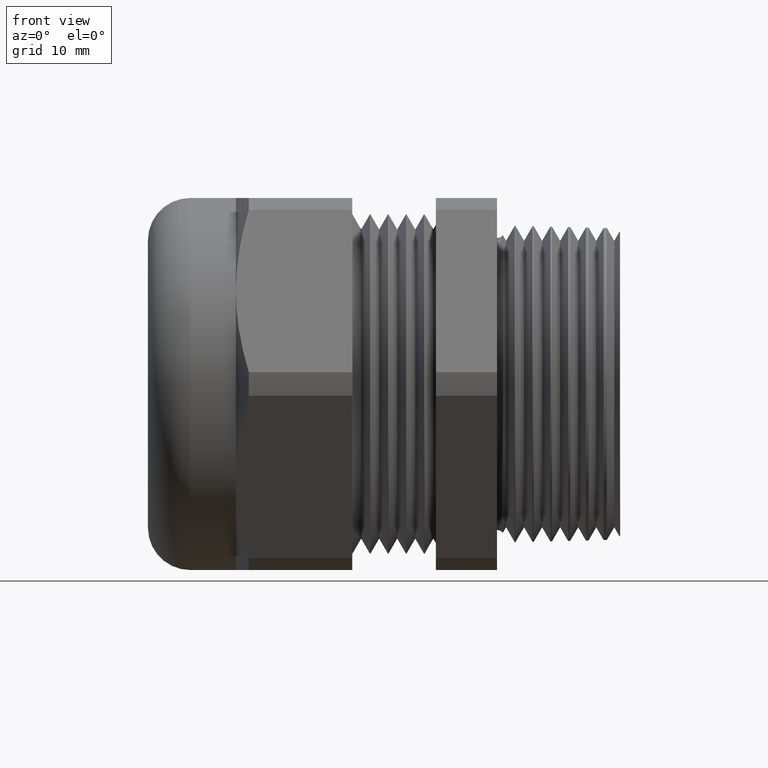
[diagram: clean part render]
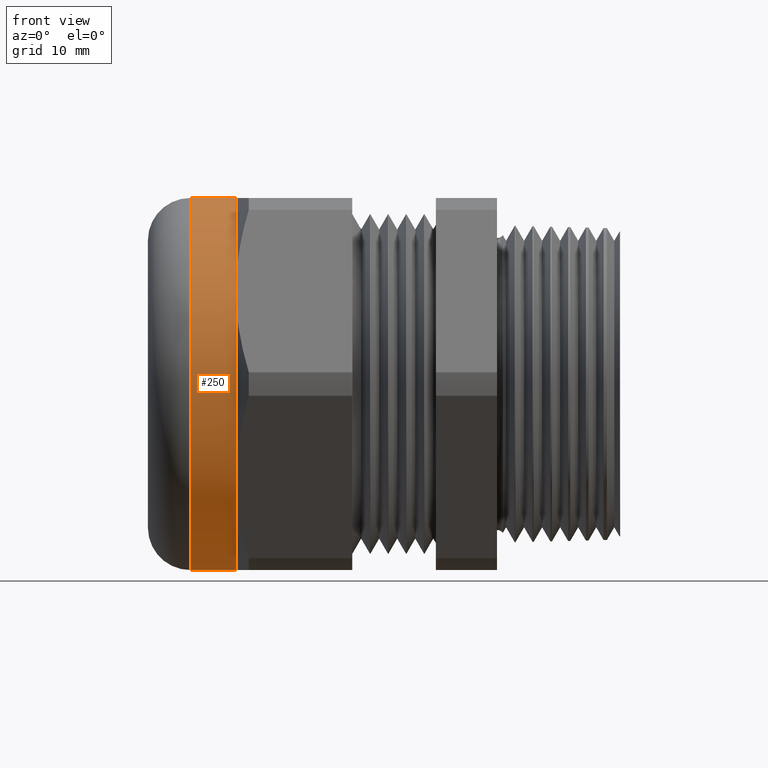
[diagram: same view with one face highlighted and labeled with its STEP entity id]
A machine part, front view. The second image highlights one B-rep face of the part: STEP entity #250.
In plain terms, the highlighted cylindrical surface (partial cylindrical patch) has radius 16.51 mm, axis along (-1, 0, 0).
Its self-contained STEP definition (entity closure, byte-faithful):
#205 = VERTEX_POINT ( 'NONE', #1530 ) ;
#250 = ADVANCED_FACE ( 'NONE', ( #1598 ), #1596, .T. ) ;
#251 = EDGE_LOOP ( 'NONE', ( #252, #253, #255, #257, #259, #309 ) ) ;
#252 = ORIENTED_EDGE ( 'NONE', *, *, #877, .F. ) ;
#253 = ORIENTED_EDGE ( 'NONE', *, *, #254, .T. ) ;
#254 = EDGE_CURVE ( 'NONE', #875, #205, #1591, .T. ) ;
#255 = ORIENTED_EDGE ( 'NONE', *, *, #256, .T. ) ;
#256 = EDGE_CURVE ( 'NONE', #205, #3609, #1587, .T. ) ;
#257 = ORIENTED_EDGE ( 'NONE', *, *, #258, .T. ) ;
#258 = EDGE_CURVE ( 'NONE', #3609, #881, #1582, .T. ) ;
#259 = ORIENTED_EDGE ( 'NONE', *, *, #880, .T. ) ;
#309 = ORIENTED_EDGE ( 'NONE', *, *, #310, .T. ) ;
#310 = EDGE_CURVE ( 'NONE', #922, #930, #1649, .T. ) ;
#875 = VERTEX_POINT ( 'NONE', #2665 ) ;
#877 = EDGE_CURVE ( 'NONE', #875, #930, #2664, .T. ) ;
#880 = EDGE_CURVE ( 'NONE', #881, #922, #2660, .T. ) ;
#881 = VERTEX_POINT ( 'NONE', #2656 ) ;
#922 = VERTEX_POINT ( 'NONE', #2705 ) ;
#930 = VERTEX_POINT ( 'NONE', #2751 ) ;
#1530 = CARTESIAN_POINT ( 'NONE',  ( -0.9125000000000002000, -0.5629165124598850500, -0.3249999999999999000 ) ) ;
#1580 = CARTESIAN_POINT ( 'NONE',  ( -0.9125000000000002000, 0.0000000000000000000, 0.0000000000000000000 ) ) ;
#1581 = AXIS2_PLACEMENT_3D ( 'NONE', #1580, #1643, #1642 ) ;
#1582 = CIRCLE ( 'NONE', #1581, 0.6499999999999999100 ) ;
#1583 = DIRECTION ( 'NONE',  ( 0.0000000000000000000, 0.0000000000000000000, 1.000000000000000000 ) ) ;
#1584 = DIRECTION ( 'NONE',  ( -1.000000000000000000, 0.0000000000000000000, 0.0000000000000000000 ) ) ;
#1585 = CARTESIAN_POINT ( 'NONE',  ( -0.9125000000000002000, 0.0000000000000000000, 0.0000000000000000000 ) ) ;
#1586 = AXIS2_PLACEMENT_3D ( 'NONE', #1585, #1584, #1583 ) ;
#1587 = CIRCLE ( 'NONE', #1586, 0.6499999999999999100 ) ;
#1588 = DIRECTION ( 'NONE',  ( 0.0000000000000000000, 0.0000000000000000000, 1.000000000000000000 ) ) ;
#1589 = DIRECTION ( 'NONE',  ( -1.000000000000000000, 0.0000000000000000000, 0.0000000000000000000 ) ) ;
#1590 = AXIS2_PLACEMENT_3D ( 'NONE', #1597, #1589, #1588 ) ;
#1591 = CIRCLE ( 'NONE', #1590, 0.6499999999999999100 ) ;
#1592 = DIRECTION ( 'NONE',  ( 0.0000000000000000000, 0.0000000000000000000, 1.000000000000000000 ) ) ;
#1593 = DIRECTION ( 'NONE',  ( -1.000000000000000000, 0.0000000000000000000, 0.0000000000000000000 ) ) ;
#1594 = CARTESIAN_POINT ( 'NONE',  ( -0.7238591030180623300, 0.0000000000000000000, 0.0000000000000000000 ) ) ;
#1595 = AXIS2_PLACEMENT_3D ( 'NONE', #1594, #1593, #1592 ) ;
#1596 = CYLINDRICAL_SURFACE ( 'NONE', #1595, 0.6499999999999999100 ) ;
#1597 = CARTESIAN_POINT ( 'NONE',  ( -0.9125000000000002000, 0.0000000000000000000, 0.0000000000000000000 ) ) ;
#1598 = FACE_OUTER_BOUND ( 'NONE', #251, .T. ) ;
#1642 = DIRECTION ( 'NONE',  ( 0.0000000000000000000, 0.0000000000000000000, 1.000000000000000000 ) ) ;
#1643 = DIRECTION ( 'NONE',  ( -1.000000000000000000, 0.0000000000000000000, 0.0000000000000000000 ) ) ;
#1646 = DIRECTION ( 'NONE',  ( 0.0000000000000000000, 0.0000000000000000000, -1.000000000000000000 ) ) ;
#1647 = DIRECTION ( 'NONE',  ( 1.000000000000000000, 0.0000000000000000000, 0.0000000000000000000 ) ) ;
#1648 = AXIS2_PLACEMENT_3D ( 'NONE', #1653, #1647, #1646 ) ;
#1649 = CIRCLE ( 'NONE', #1648, 0.6499999999999999100 ) ;
#1653 = CARTESIAN_POINT ( 'NONE',  ( -1.071999999999999800, 0.0000000000000000000, 0.0000000000000000000 ) ) ;
#2656 = CARTESIAN_POINT ( 'NONE',  ( -0.9125000000000002000, 0.0000000000000000000, 0.6499999999999999100 ) ) ;
#2657 = DIRECTION ( 'NONE',  ( -1.000000000000000000, 0.0000000000000000000, 0.0000000000000000000 ) ) ;
#2658 = VECTOR ( 'NONE', #2657, 39.37007874015748100 ) ;
#2659 = CARTESIAN_POINT ( 'NONE',  ( -0.7238591030180623300, 0.0000000000000000000, 0.6499999999999999100 ) ) ;
#2660 = LINE ( 'NONE', #2659, #2658 ) ;
#2661 = DIRECTION ( 'NONE',  ( -1.000000000000000000, 0.0000000000000000000, 0.0000000000000000000 ) ) ;
#2662 = VECTOR ( 'NONE', #2661, 39.37007874015748100 ) ;
#2663 = CARTESIAN_POINT ( 'NONE',  ( -0.7238591030180623300, 7.960204194457794200E-017, -0.6499999999999999100 ) ) ;
#2664 = LINE ( 'NONE', #2663, #2662 ) ;
#2665 = CARTESIAN_POINT ( 'NONE',  ( -0.9125000000000002000, 0.0000000000000000000, -0.6499999999999999100 ) ) ;
#2705 = CARTESIAN_POINT ( 'NONE',  ( -1.071999999999999800, 0.0000000000000000000, 0.6499999999999999100 ) ) ;
#2751 = CARTESIAN_POINT ( 'NONE',  ( -1.071999999999999800, 7.960204194457794200E-017, -0.6499999999999999100 ) ) ;
#3339 = CARTESIAN_POINT ( 'NONE',  ( -0.9125000000000002000, -0.5629165124598850500, 0.3249999999999999000 ) ) ;
#3609 = VERTEX_POINT ( 'NONE', #3339 ) ;